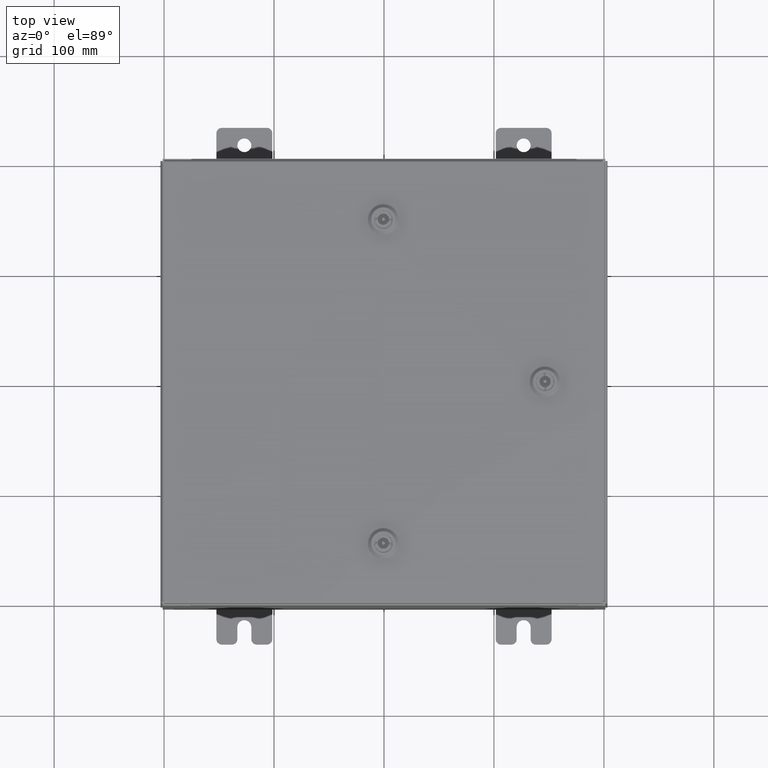
[diagram: clean part render]
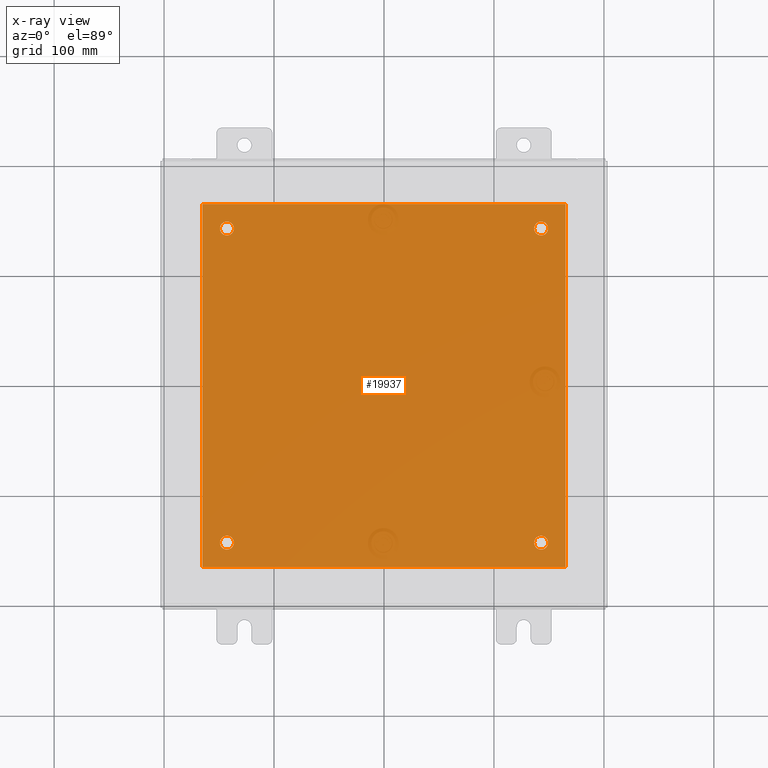
[diagram: x-ray — body ghosted, one internal face saturated and labeled with its STEP entity id]
A machine part, top view, then the same camera in x-ray: the body is ghosted and one INTERNAL B-rep face — a face not visible from any outside direction — is saturated and labeled: STEP entity #19937.
In plain terms, the highlighted planar face has unit normal (0, 0, -1).
Its self-contained STEP definition (entity closure, byte-faithful):
#238 = EDGE_CURVE ( 'NONE', #25939, #33530, #34758, .T. ) ;
#277 = ORIENTED_EDGE ( 'NONE', *, *, #55445, .T. ) ;
#1027 = FACE_BOUND ( 'NONE', #23768, .T. ) ;
#1287 = AXIS2_PLACEMENT_3D ( 'NONE', #1519, #35264, #6360 ) ;
#1519 = CARTESIAN_POINT ( 'NONE',  ( -5.625000000000002700, -5.625000000000000900, -0.1039999999999999800 ) ) ;
#1657 = VERTEX_POINT ( 'NONE', #38093 ) ;
#1748 = CARTESIAN_POINT ( 'NONE',  ( -5.375000000000002700, 5.625000000000000900, -0.1039999999999999800 ) ) ;
#2550 = FACE_BOUND ( 'NONE', #30916, .T. ) ;
#2868 = CARTESIAN_POINT ( 'NONE',  ( 5.625000000000002700, 5.625000000000000900, -0.1039999999999999800 ) ) ;
#4232 = CARTESIAN_POINT ( 'NONE',  ( 5.875000000000000900, 5.625000000000000900, -0.1039999999999999800 ) ) ;
#5627 = VECTOR ( 'NONE', #49051, 39.37007874015748100 ) ;
#6360 = DIRECTION ( 'NONE',  ( -1.000000000000000000, 0.0000000000000000000, 0.0000000000000000000 ) ) ;
#7689 = DIRECTION ( 'NONE',  ( -1.000000000000000000, 0.0000000000000000000, 0.0000000000000000000 ) ) ;
#7708 = ORIENTED_EDGE ( 'NONE', *, *, #238, .T. ) ;
#7822 = DIRECTION ( 'NONE',  ( 0.0000000000000000000, 1.000000000000000000, 0.0000000000000000000 ) ) ;
#7993 = VECTOR ( 'NONE', #18630, 39.37007874015748100 ) ;
#8119 = VECTOR ( 'NONE', #7822, 39.37007874015748100 ) ;
#8487 = ORIENTED_EDGE ( 'NONE', *, *, #54859, .T. ) ;
#9197 = EDGE_CURVE ( 'NONE', #56433, #21428, #34855, .T. ) ;
#10568 = CARTESIAN_POINT ( 'NONE',  ( -5.625000000000002700, 5.625000000000000900, -0.1039999999999999800 ) ) ;
#11771 = CIRCLE ( 'NONE', #45578, 0.2499999999999998100 ) ;
#12335 = VERTEX_POINT ( 'NONE', #55439 ) ;
#12895 = LINE ( 'NONE', #47851, #38558 ) ;
#12997 = VERTEX_POINT ( 'NONE', #50005 ) ;
#13973 = ORIENTED_EDGE ( 'NONE', *, *, #34303, .F. ) ;
#15440 = DIRECTION ( 'NONE',  ( -1.000000000000000000, 0.0000000000000000000, 0.0000000000000000000 ) ) ;
#15654 = DIRECTION ( 'NONE',  ( -0.0000000000000000000, -0.0000000000000000000, 1.000000000000000000 ) ) ;
#16139 = EDGE_CURVE ( 'NONE', #19203, #1657, #20950, .T. ) ;
#17906 = CARTESIAN_POINT ( 'NONE',  ( -6.500000000000000000, 6.500000000000000900, -0.1039999999999999800 ) ) ;
#17908 = EDGE_LOOP ( 'NONE', ( #61450, #7708 ) ) ;
#17930 = CIRCLE ( 'NONE', #27132, 0.2499999999999998100 ) ;
#18627 = AXIS2_PLACEMENT_3D ( 'NONE', #54792, #25842, #59613 ) ;
#18630 = DIRECTION ( 'NONE',  ( 1.000000000000000000, 0.0000000000000000000, 0.0000000000000000000 ) ) ;
#18917 = DIRECTION ( 'NONE',  ( -1.000000000000000000, -0.0000000000000000000, -0.0000000000000000000 ) ) ;
#19203 = VERTEX_POINT ( 'NONE', #51778 ) ;
#19937 = ADVANCED_FACE ( 'NONE', ( #2550, #26668, #52319, #1027, #53858 ), #20450, .T. ) ;
#20450 = PLANE ( 'NONE',  #51677 ) ;
#20522 = DIRECTION ( 'NONE',  ( -0.0000000000000000000, -0.0000000000000000000, 1.000000000000000000 ) ) ;
#20950 = LINE ( 'NONE', #27010, #8119 ) ;
#21032 = AXIS2_PLACEMENT_3D ( 'NONE', #22471, #56251, #27323 ) ;
#21428 = VERTEX_POINT ( 'NONE', #39259 ) ;
#22184 = CIRCLE ( 'NONE', #50729, 0.2499999999999998100 ) ;
#22471 = CARTESIAN_POINT ( 'NONE',  ( 5.625000000000002700, -5.625000000000000900, -0.1039999999999999800 ) ) ;
#23768 = EDGE_LOOP ( 'NONE', ( #52374, #277 ) ) ;
#24011 = VERTEX_POINT ( 'NONE', #17906 ) ;
#24208 = DIRECTION ( 'NONE',  ( -1.000000000000000000, 0.0000000000000000000, 0.0000000000000000000 ) ) ;
#24349 = ORIENTED_EDGE ( 'NONE', *, *, #16139, .F. ) ;
#24734 = CARTESIAN_POINT ( 'NONE',  ( -6.500000000000000000, -6.499999999999999100, -0.1039999999999999800 ) ) ;
#25071 = ORIENTED_EDGE ( 'NONE', *, *, #32842, .F. ) ;
#25074 = CARTESIAN_POINT ( 'NONE',  ( -6.500000000000000000, -6.499999999999999100, -0.1039999999999999800 ) ) ;
#25273 = CARTESIAN_POINT ( 'NONE',  ( 0.0000000000000000000, 0.0000000000000000000, -0.1039999999999999800 ) ) ;
#25842 = DIRECTION ( 'NONE',  ( -0.0000000000000000000, -0.0000000000000000000, 1.000000000000000000 ) ) ;
#25939 = VERTEX_POINT ( 'NONE', #28860 ) ;
#26001 = ORIENTED_EDGE ( 'NONE', *, *, #51956, .F. ) ;
#26668 = FACE_BOUND ( 'NONE', #17908, .T. ) ;
#27010 = CARTESIAN_POINT ( 'NONE',  ( 6.500000000000000000, -6.499999999999999100, -0.1039999999999999800 ) ) ;
#27132 = AXIS2_PLACEMENT_3D ( 'NONE', #10568, #44335, #15440 ) ;
#27323 = DIRECTION ( 'NONE',  ( -1.000000000000000000, 0.0000000000000000000, 0.0000000000000000000 ) ) ;
#28478 = EDGE_CURVE ( 'NONE', #33530, #25939, #56466, .T. ) ;
#28860 = CARTESIAN_POINT ( 'NONE',  ( 5.375000000000003600, -5.625000000000000900, -0.1039999999999999800 ) ) ;
#29377 = EDGE_CURVE ( 'NONE', #12335, #51515, #54912, .T. ) ;
#30124 = DIRECTION ( 'NONE',  ( -1.000000000000000000, 0.0000000000000000000, -0.0000000000000000000 ) ) ;
#30916 = EDGE_LOOP ( 'NONE', ( #31767, #45444 ) ) ;
#31281 = LINE ( 'NONE', #24734, #5627 ) ;
#31767 = ORIENTED_EDGE ( 'NONE', *, *, #29377, .T. ) ;
#32842 = EDGE_CURVE ( 'NONE', #35073, #19203, #59318, .T. ) ;
#33530 = VERTEX_POINT ( 'NONE', #37796 ) ;
#34303 = EDGE_CURVE ( 'NONE', #24011, #35073, #31281, .T. ) ;
#34758 = CIRCLE ( 'NONE', #38571, 0.2499999999999987000 ) ;
#34855 = CIRCLE ( 'NONE', #35612, 0.2499999999999987000 ) ;
#35073 = VERTEX_POINT ( 'NONE', #25074 ) ;
#35264 = DIRECTION ( 'NONE',  ( -0.0000000000000000000, -0.0000000000000000000, 1.000000000000000000 ) ) ;
#35612 = AXIS2_PLACEMENT_3D ( 'NONE', #2868, #36622, #7689 ) ;
#36622 = DIRECTION ( 'NONE',  ( -0.0000000000000000000, -0.0000000000000000000, 1.000000000000000000 ) ) ;
#37796 = CARTESIAN_POINT ( 'NONE',  ( 5.875000000000000900, -5.625000000000000900, -0.1039999999999999800 ) ) ;
#38093 = CARTESIAN_POINT ( 'NONE',  ( 6.500000000000000000, 6.500000000000000900, -0.1039999999999999800 ) ) ;
#38558 = VECTOR ( 'NONE', #18917, 39.37007874015748100 ) ;
#38571 = AXIS2_PLACEMENT_3D ( 'NONE', #45040, #48031, #24208 ) ;
#39259 = CARTESIAN_POINT ( 'NONE',  ( 5.375000000000003600, 5.625000000000000900, -0.1039999999999999800 ) ) ;
#44335 = DIRECTION ( 'NONE',  ( -0.0000000000000000000, -0.0000000000000000000, 1.000000000000000000 ) ) ;
#44543 = CARTESIAN_POINT ( 'NONE',  ( -5.625000000000002700, -5.625000000000000900, -0.1039999999999999800 ) ) ;
#45040 = CARTESIAN_POINT ( 'NONE',  ( 5.625000000000002700, -5.625000000000000900, -0.1039999999999999800 ) ) ;
#45211 = CARTESIAN_POINT ( 'NONE',  ( -5.875000000000001800, -5.625000000000000900, -0.1039999999999999800 ) ) ;
#45444 = ORIENTED_EDGE ( 'NONE', *, *, #61435, .T. ) ;
#45578 = AXIS2_PLACEMENT_3D ( 'NONE', #44543, #15654, #49416 ) ;
#46103 = EDGE_CURVE ( 'NONE', #62495, #12997, #22184, .T. ) ;
#47562 = CARTESIAN_POINT ( 'NONE',  ( -6.500000000000000000, -6.499999999999999100, -0.1039999999999999800 ) ) ;
#47851 = CARTESIAN_POINT ( 'NONE',  ( -6.500000000000000000, 6.500000000000000900, -0.1039999999999999800 ) ) ;
#48031 = DIRECTION ( 'NONE',  ( -0.0000000000000000000, -0.0000000000000000000, 1.000000000000000000 ) ) ;
#48637 = EDGE_LOOP ( 'NONE', ( #62153, #8487 ) ) ;
#49051 = DIRECTION ( 'NONE',  ( -0.0000000000000000000, -1.000000000000000000, -0.0000000000000000000 ) ) ;
#49416 = DIRECTION ( 'NONE',  ( -1.000000000000000000, 0.0000000000000000000, 0.0000000000000000000 ) ) ;
#49454 = CARTESIAN_POINT ( 'NONE',  ( -5.625000000000002700, 5.625000000000000900, -0.1039999999999999800 ) ) ;
#50005 = CARTESIAN_POINT ( 'NONE',  ( -5.875000000000001800, 5.625000000000000900, -0.1039999999999999800 ) ) ;
#50729 = AXIS2_PLACEMENT_3D ( 'NONE', #49454, #20522, #54287 ) ;
#51515 = VERTEX_POINT ( 'NONE', #45211 ) ;
#51677 = AXIS2_PLACEMENT_3D ( 'NONE', #25273, #59051, #30124 ) ;
#51778 = CARTESIAN_POINT ( 'NONE',  ( 6.500000000000000000, -6.499999999999999100, -0.1039999999999999800 ) ) ;
#51956 = EDGE_CURVE ( 'NONE', #1657, #24011, #12895, .T. ) ;
#52319 = FACE_BOUND ( 'NONE', #48637, .T. ) ;
#52374 = ORIENTED_EDGE ( 'NONE', *, *, #46103, .T. ) ;
#53858 = FACE_OUTER_BOUND ( 'NONE', #60575, .T. ) ;
#54227 = CIRCLE ( 'NONE', #18627, 0.2499999999999987000 ) ;
#54287 = DIRECTION ( 'NONE',  ( -1.000000000000000000, 0.0000000000000000000, 0.0000000000000000000 ) ) ;
#54792 = CARTESIAN_POINT ( 'NONE',  ( 5.625000000000002700, 5.625000000000000900, -0.1039999999999999800 ) ) ;
#54859 = EDGE_CURVE ( 'NONE', #21428, #56433, #54227, .T. ) ;
#54912 = CIRCLE ( 'NONE', #1287, 0.2499999999999998100 ) ;
#55439 = CARTESIAN_POINT ( 'NONE',  ( -5.375000000000002700, -5.625000000000000900, -0.1039999999999999800 ) ) ;
#55445 = EDGE_CURVE ( 'NONE', #12997, #62495, #17930, .T. ) ;
#56251 = DIRECTION ( 'NONE',  ( -0.0000000000000000000, -0.0000000000000000000, 1.000000000000000000 ) ) ;
#56433 = VERTEX_POINT ( 'NONE', #4232 ) ;
#56466 = CIRCLE ( 'NONE', #21032, 0.2499999999999987000 ) ;
#59051 = DIRECTION ( 'NONE',  ( 0.0000000000000000000, 0.0000000000000000000, -1.000000000000000000 ) ) ;
#59318 = LINE ( 'NONE', #47562, #7993 ) ;
#59613 = DIRECTION ( 'NONE',  ( -1.000000000000000000, 0.0000000000000000000, 0.0000000000000000000 ) ) ;
#60575 = EDGE_LOOP ( 'NONE', ( #24349, #25071, #13973, #26001 ) ) ;
#61435 = EDGE_CURVE ( 'NONE', #51515, #12335, #11771, .T. ) ;
#61450 = ORIENTED_EDGE ( 'NONE', *, *, #28478, .T. ) ;
#62153 = ORIENTED_EDGE ( 'NONE', *, *, #9197, .T. ) ;
#62495 = VERTEX_POINT ( 'NONE', #1748 ) ;